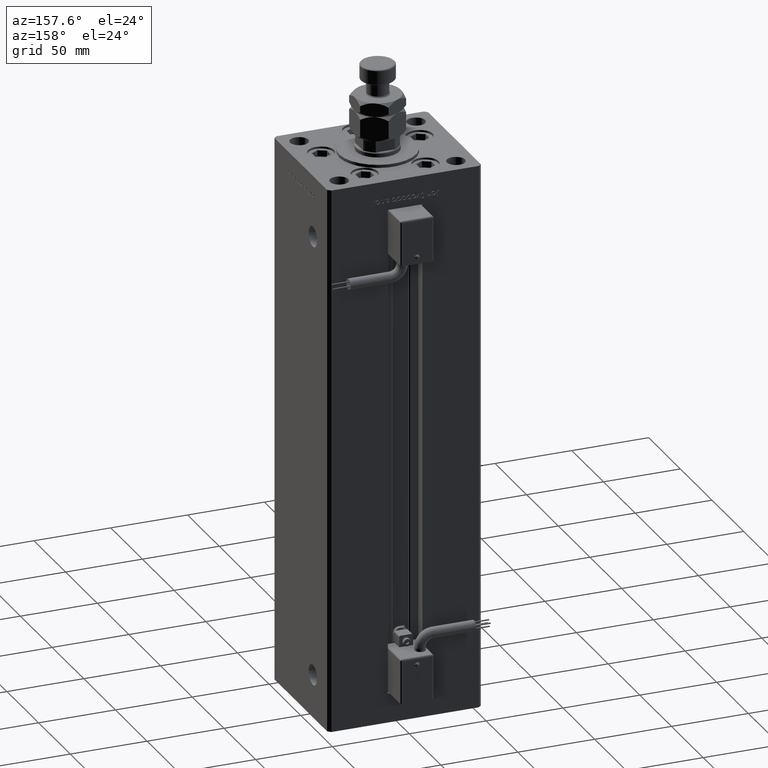
[diagram: clean part render]
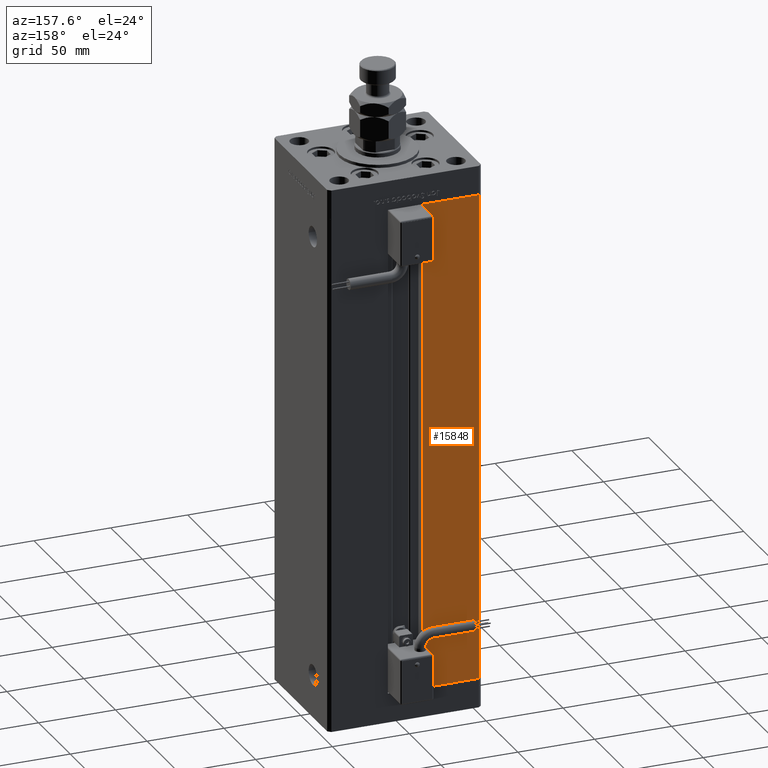
[diagram: same view with one face highlighted and labeled with its STEP entity id]
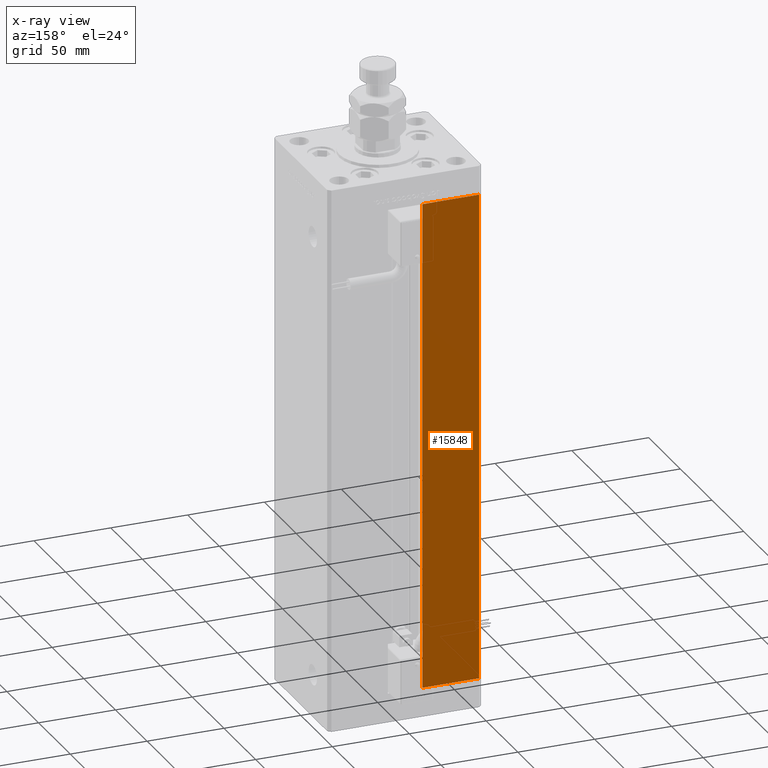
[diagram: x-ray of the same camera — body ghosted, the highlighted face saturated]
A machine part, auxiliary view. The second image highlights one B-rep face of the part: STEP entity #15848.
The next image is the same camera in x-ray: the body ghosted, the highlighted face saturated — about 0% of this face is hidden behind the body in this view.
In plain terms, the highlighted planar face has unit normal (0, -1, 0).
Its self-contained STEP definition (entity closure, byte-faithful):
#991 = ORIENTED_EDGE ( 'NONE', *, *, #43280, .F. ) ;
#2516 = CARTESIAN_POINT ( 'NONE',  ( -11.24999999999999822, 43.50000000000000000, 318.5000000000000000 ) ) ;
#2565 = DIRECTION ( 'NONE',  ( -0.000000000000000000, -0.000000000000000000, -1.000000000000000000 ) ) ;
#3945 = LINE ( 'NONE', #15289, #40436 ) ;
#4036 = LINE ( 'NONE', #53220, #15539 ) ;
#4267 = VECTOR ( 'NONE', #2565, 1000.000000000000000 ) ;
#4822 = VERTEX_POINT ( 'NONE', #11595 ) ;
#6768 = VERTEX_POINT ( 'NONE', #27697 ) ;
#8271 = CARTESIAN_POINT ( 'NONE',  ( -11.24999999999999822, 43.50000000000000000, 318.5000000000000000 ) ) ;
#10492 = EDGE_CURVE ( 'NONE', #6768, #14892, #4036, .T. ) ;
#11205 = EDGE_LOOP ( 'NONE', ( #36016, #52043, #35072, #991 ) ) ;
#11595 = CARTESIAN_POINT ( 'NONE',  ( -11.24999999999999822, 43.50000000000000000, 0.000000000000000000 ) ) ;
#12208 = EDGE_CURVE ( 'NONE', #4822, #14892, #3945, .T. ) ;
#14254 = VERTEX_POINT ( 'NONE', #56892 ) ;
#14892 = VERTEX_POINT ( 'NONE', #2516 ) ;
#14971 = CARTESIAN_POINT ( 'NONE',  ( -48.00000000000000711, 43.50000000000000000, 318.5000000000000000 ) ) ;
#15289 = CARTESIAN_POINT ( 'NONE',  ( -11.24999999999999822, 43.50000000000000000, 0.000000000000000000 ) ) ;
#15539 = VECTOR ( 'NONE', #31358, 1000.000000000000000 ) ;
#15848 = ADVANCED_FACE ( 'NONE', ( #51700 ), #34157, .F. ) ;
#16626 = DIRECTION ( 'NONE',  ( -0.000000000000000000, -0.000000000000000000, 1.000000000000000000 ) ) ;
#18500 = AXIS2_PLACEMENT_3D ( 'NONE', #8271, #24953, #35020 ) ;
#23033 = LINE ( 'NONE', #44052, #47359 ) ;
#24953 = DIRECTION ( 'NONE',  ( 0.000000000000000000, -1.000000000000000000, 0.000000000000000000 ) ) ;
#27645 = DIRECTION ( 'NONE',  ( -1.000000000000000000, 0.000000000000000000, 0.000000000000000000 ) ) ;
#27697 = CARTESIAN_POINT ( 'NONE',  ( -48.00000000000000711, 43.50000000000000000, 318.5000000000000000 ) ) ;
#31358 = DIRECTION ( 'NONE',  ( 1.000000000000000000, 0.000000000000000000, 0.000000000000000000 ) ) ;
#34157 = PLANE ( 'NONE',  #18500 ) ;
#35020 = DIRECTION ( 'NONE',  ( 0.000000000000000000, -0.000000000000000000, -1.000000000000000000 ) ) ;
#35072 = ORIENTED_EDGE ( 'NONE', *, *, #36519, .T. ) ;
#36016 = ORIENTED_EDGE ( 'NONE', *, *, #10492, .T. ) ;
#36519 = EDGE_CURVE ( 'NONE', #4822, #14254, #23033, .T. ) ;
#37119 = LINE ( 'NONE', #14971, #4267 ) ;
#40436 = VECTOR ( 'NONE', #16626, 1000.000000000000000 ) ;
#43280 = EDGE_CURVE ( 'NONE', #6768, #14254, #37119, .T. ) ;
#44052 = CARTESIAN_POINT ( 'NONE',  ( -11.24999999999999822, 43.50000000000000000, 0.000000000000000000 ) ) ;
#47359 = VECTOR ( 'NONE', #27645, 1000.000000000000000 ) ;
#51700 = FACE_OUTER_BOUND ( 'NONE', #11205, .T. ) ;
#52043 = ORIENTED_EDGE ( 'NONE', *, *, #12208, .F. ) ;
#53220 = CARTESIAN_POINT ( 'NONE',  ( -11.24999999999999822, 43.50000000000000000, 318.5000000000000000 ) ) ;
#56892 = CARTESIAN_POINT ( 'NONE',  ( -48.00000000000000711, 43.50000000000000000, 0.000000000000000000 ) ) ;